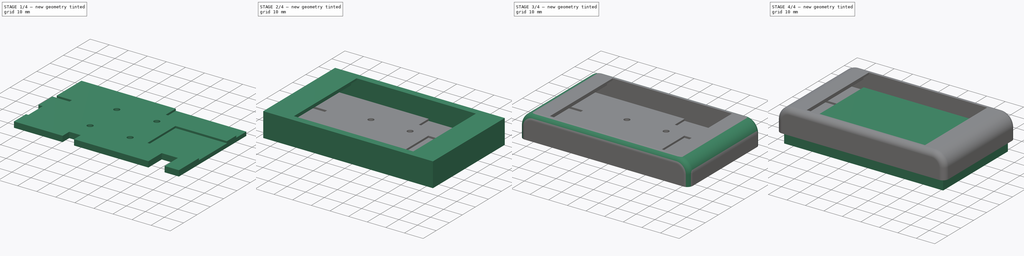
[diagram: build sequence overview — one tinted view per stage of 4, left to right]
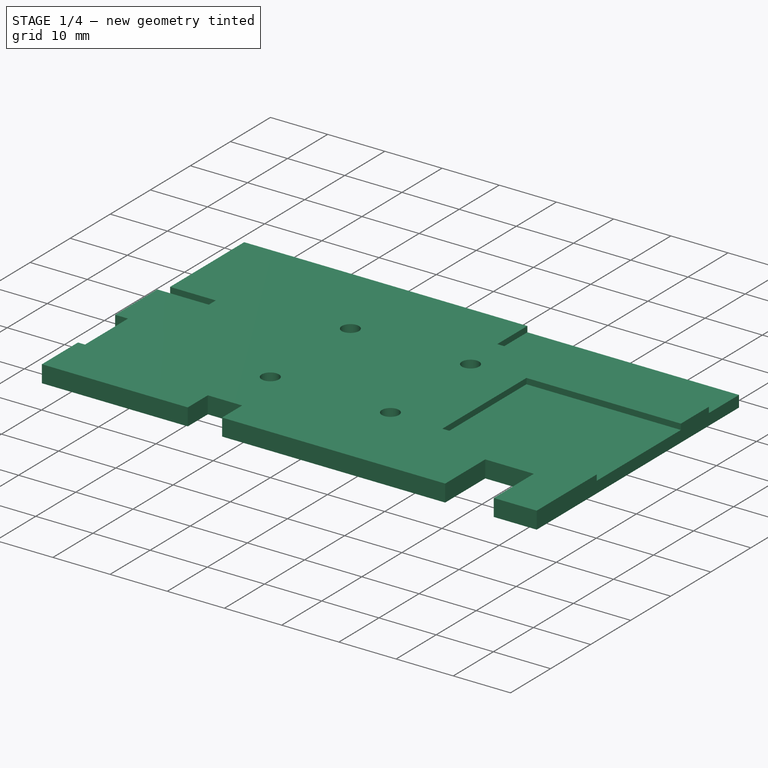
[diagram: stage 1 of 4 — iso view after this stage's code; geometry added in this stage tinted green]
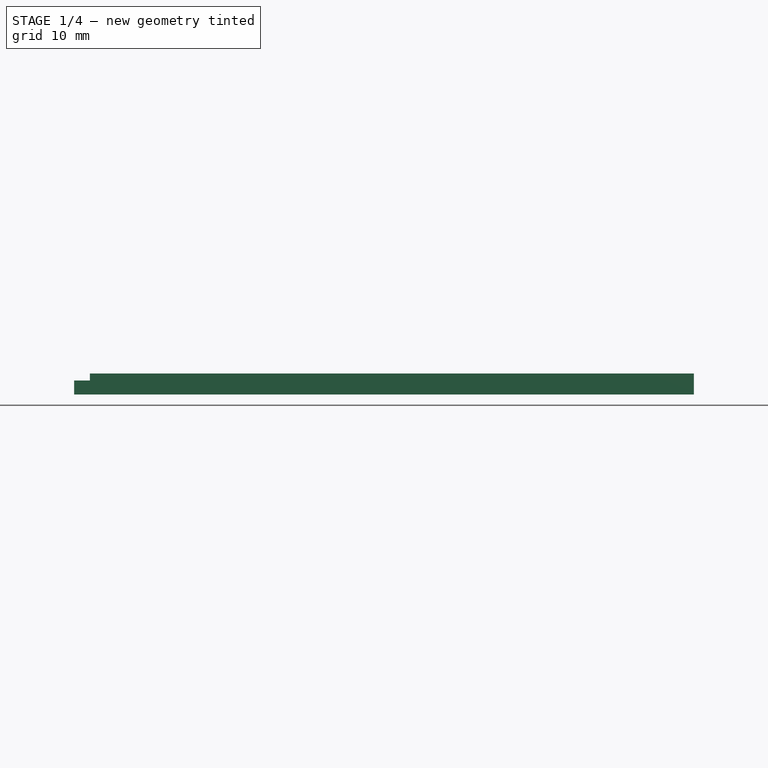
[diagram: stage 1 of 4 — front view after this stage's code; geometry added in this stage tinted green]
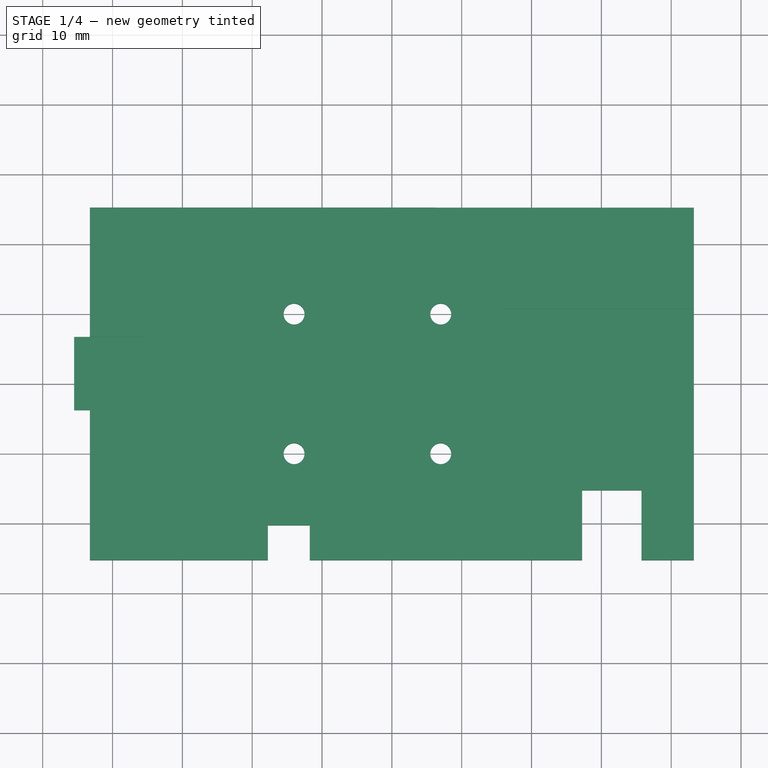
[diagram: stage 1 of 4 — top view after this stage's code; geometry added in this stage tinted green]
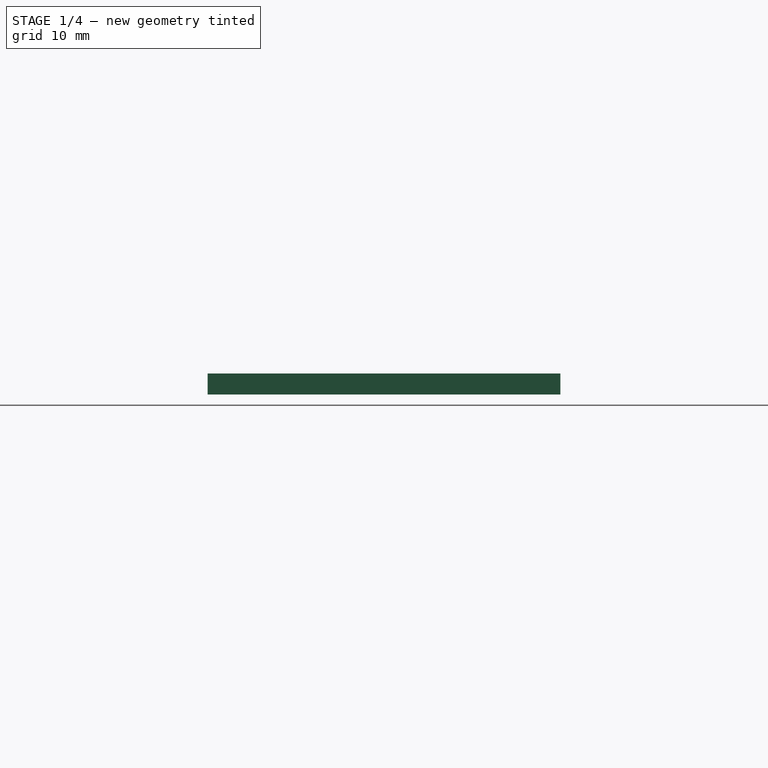
[diagram: stage 1 of 4 — right view after this stage's code; geometry added in this stage tinted green]
FCSTD DOCUMENT  (FreeCAD 1.0R39319 (Git))
Label: screenframe
License: All rights reserved
LicenseURL: https://en.wikipedia.org/wiki/All_rights_reserved
objects: Sketcher::SketchObject×9, PartDesign::Pad×7, PartDesign::Body×3, PartDesign::Fillet×2, PartDesign::Pocket×2, PartDesign::SubtractiveBox×1
note: 57 computed .brp shape members not serialized (recipe doc carries the construction recipe); baked Part::Feature solids carry a one-line shape summary decoded from their .brp

FEATURE [PartDesign::Body] Body001  label="cover frame"
  AllowCompound = false
  Group = -> [Sketch002,Pad002,Sketch003,Pad003,Pad004,Sketch004,Fillet,Fillet001,Box,Sketch005,Pocket]
  Origin = -> Origin001
  Placement = pos=(0,0,-7) rot=(0,0,1;0rad)
  Tip = -> Pocket
FEATURE [Sketcher::SketchObject] Sketch006
  ArcFitTolerance = 1e-06
  AttachmentSupport = -> [XY_Plane002]
  FullyConstrained = true
  MakeInternals = false
  MapMode = 5
  sketch-geometry (16):
    g0: LineSegment StartX=-43.25 StartY=-3.75 StartZ=0 EndX=-43.25 EndY=-25.25 EndZ=0
    g1: LineSegment StartX=43.25 StartY=-25.25 StartZ=0 EndX=43.25 EndY=25.25 EndZ=0
    g2: LineSegment StartX=-43.25 StartY=-3.75 StartZ=0 EndX=-45.5 EndY=-3.75 EndZ=0
    g3: LineSegment StartX=-45.5 StartY=-3.75 StartZ=0 EndX=-45.5 EndY=6.75 EndZ=0
    g4: LineSegment StartX=-45.5 StartY=6.75 StartZ=0 EndX=-43.25 EndY=6.75 EndZ=0
    g5: LineSegment StartX=-43.25 StartY=6.75 StartZ=0 EndX=-43.25 EndY=25.25 EndZ=0
    g6: LineSegment StartX=43.25 StartY=-25.25 StartZ=0 EndX=35.75 EndY=-25.25 EndZ=0
    g7: LineSegment StartX=35.75 StartY=-25.25 StartZ=0 EndX=35.75 EndY=-15.25 EndZ=0
    g8: LineSegment StartX=35.75 StartY=-15.25 StartZ=0 EndX=27.25 EndY=-15.25 EndZ=0
    g9: LineSegment StartX=27.25 StartY=-15.25 StartZ=0 EndX=27.25 EndY=-25.25 EndZ=0
    g10: LineSegment StartX=-43.25 StartY=-25.25 StartZ=0 EndX=-17.75 EndY=-25.25 EndZ=0
    g11: LineSegment StartX=-17.75 StartY=-25.25 StartZ=0 EndX=-17.75 EndY=-20.25 EndZ=0
    g12: LineSegment StartX=-17.75 StartY=-20.25 StartZ=0 EndX=-11.75 EndY=-20.25 EndZ=0
    g13: LineSegment StartX=-11.75 StartY=-20.25 StartZ=0 EndX=-11.75 EndY=-25.25 EndZ=0
    g14: LineSegment StartX=-11.75 StartY=-25.25 StartZ=0 EndX=27.25 EndY=-25.25 EndZ=0
    g15: LineSegment StartX=-43.25 StartY=25.25 StartZ=0 EndX=43.25 EndY=25.25 EndZ=0
  constraints (48):
    c: Vertical(g0)
    c: Vertical(g1)
    c: DistanceY(g1,g1) = 50.5
    c: Distance(g1,g-1) = 25.25
    c: DistanceY(g0,g0) = 21.5
    c: Distance(g2) = 2.25
    c: Coincident(g2,g0)
    c: Horizontal(g2)
    c: Distance(g3) = 10.5
    c: Coincident(g3,g2)
    c: Vertical(g3)
    c: Distance(g4) = 2.25
    c: Coincident(g4,g3)
    c: Horizontal(g4)
    c: Distance(g5) = 18.5
    c: Coincident(g5,g4)
    c: Vertical(g5)
    c: Distance(g6) = 7.5
    c: Horizontal(g6)
    c: Coincident(g6,g1)
    c: Distance(g7) = 10
    c: Coincident(g7,g6)
    c: Vertical(g7)
    c: Distance(g8) = 8.5
    c: Coincident(g8,g7)
    c: Horizontal(g8)
    c: Coincident(g9,g8)
    c: Vertical(g9)
    c: Equal(g7,g9)
    c: Distance(g10) = 25.5
    c: Horizontal(g10)
    c: Coincident(g10,g0)
    c: Distance(g11) = 5
    c: Vertical(g11)
    c: Coincident(g11,g10)
    c: Distance(g12,g12) = 6
    c: Coincident(g13,g12)
    c: Vertical(g13)
    c: Equal(g11,g13)
    c: Parallel(g12,g-1)
    c: Coincident(g14,g13)
    c: Coincident(g14,g9)
    c: Horizontal(g14)
    c: Coincident(g11,g12)
    c: Coincident(g15,g5)
    c: Coincident(g15,g1)
    c: DistanceX(g15,g15) = 86.5
    c: Distance(g1,g-2) = 43.25
FEATURE [PartDesign::Pad] Pad005
  Direction = (0,0,1)
  Length = 2
  Length2 = 10
  Profile = -> Sketch006
  ReferenceAxis = -> Sketch006 [N_Axis]
  Refine = true
  Suppressed = false
  Type = 0
FEATURE [Sketcher::SketchObject] Sketch007
  ArcFitTolerance = 1e-06
  AttachmentSupport = -> [Pad005]
  FullyConstrained = true
  MakeInternals = false
  MapMode = 5
  Placement = pos=(0,0,2) rot=(0,0,1;0rad)
  sketch-geometry (22):
    g0: LineSegment StartX=43.25 StartY=-25.25 StartZ=0 EndX=43.25 EndY=-10.25 EndZ=0
    g1: LineSegment StartX=43.25 StartY=-25.25 StartZ=0 EndX=35.75 EndY=-25.25 EndZ=0
    g2: LineSegment StartX=35.75 StartY=-25.25 StartZ=0 EndX=35.75 EndY=-15.25 EndZ=0
    g3: LineSegment StartX=35.75 StartY=-15.25 StartZ=0 EndX=27.25 EndY=-15.25 EndZ=0
    g4: LineSegment StartX=27.25 StartY=-15.25 StartZ=0 EndX=27.25 EndY=-25.25 EndZ=0
    g5: LineSegment StartX=43.25 StartY=-10.25 StartZ=0 EndX=16.25 EndY=-10.25 EndZ=0
    g6: LineSegment StartX=16.25 StartY=-10.25 StartZ=0 EndX=16.25 EndY=10.75 EndZ=0
    g7: LineSegment StartX=16.25 StartY=10.75 StartZ=0 EndX=43.25 EndY=10.75 EndZ=0
    g8: LineSegment StartX=43.25 StartY=10.75 StartZ=0 EndX=43.25 EndY=17.75 EndZ=0
    g9: LineSegment StartX=43.25 StartY=17.75 StartZ=0 EndX=6.25 EndY=17.75 EndZ=0
    g10: LineSegment StartX=6.25 StartY=17.75 StartZ=0 EndX=6.25 EndY=25.25 EndZ=0
    g11: LineSegment StartX=6.25 StartY=25.25 StartZ=0 EndX=-43.25 EndY=25.25 EndZ=0
    g12: LineSegment StartX=-43.25 StartY=25.25 StartZ=0 EndX=-43.25 EndY=6.75 EndZ=0
    g13: LineSegment StartX=-43.25 StartY=6.75 StartZ=0 EndX=-35.25 EndY=6.75 EndZ=0
    g14: LineSegment StartX=-35.25 StartY=6.75 StartZ=0 EndX=-35.25 EndY=-16.25 EndZ=0
    g15: LineSegment StartX=-35.25 StartY=-16.25 StartZ=0 EndX=-43.25 EndY=-16.25 EndZ=0
    g16: LineSegment StartX=-43.25 StartY=-16.25 StartZ=0 EndX=-43.25 EndY=-25.25 EndZ=0
    g17: LineSegment StartX=-43.25 StartY=-25.25 StartZ=0 EndX=-17.75 EndY=-25.25 EndZ=0
    g18: LineSegment StartX=-17.75 StartY=-25.25 StartZ=0 EndX=-17.75 EndY=-20.25 EndZ=0
    g19: LineSegment StartX=-17.75 StartY=-20.25 StartZ=0 EndX=-11.75 EndY=-20.25 EndZ=0
    g20: LineSegment StartX=-11.75 StartY=-20.25 StartZ=0 EndX=-11.75 EndY=-25.25 EndZ=0
    g21: LineSegment StartX=-11.75 StartY=-25.25 StartZ=0 EndX=27.25 EndY=-25.25 EndZ=0
  constraints (66):
    c: Distance(g0) = 15
    c: Vertical(g0)
    c: Coincident(g4,g3)
    c: Vertical(g4)
    c: DistanceY(g2,g2) = 10
    c: Equal(g4,g2)
    c: Parallel(g3,g-1)
    c: DistanceX(g3,g3) = 8.5
    c: DistanceX(g1,g1) = 7.5
    c: Parallel(g1,g-1)
    c: Distance(g0,g-2) = 43.25
    c: Distance(g0,g-1) = 25.25
    c: Coincident(g0,g1)
    c: Coincident(g1,g2)
    c: Coincident(g3,g2)
    c: Parallel(g2,g-2)
    c: Distance(g5) = 27
    c: Coincident(g5,g0)
    c: Horizontal(g5)
    c: Distance(g6) = 21
    c: Coincident(g6,g5)
    c: Vertical(g6)
    c: Coincident(g7,g6)
    c: Horizontal(g7)
    c: Equal(g5,g7)
    c: Distance(g8) = 7
    c: Coincident(g8,g7)
    c: Vertical(g8)
    c: Distance(g9) = 37
    c: Coincident(g9,g8)
    c: Horizontal(g9)
    c: Distance(g10) = 7.5
    c: Coincident(g10,g9)
    c: Vertical(g10)
    c: Distance(g11) = 49.5
    c: Coincident(g11,g10)
    c: Horizontal(g11)
    c: Distance(g12) = 18.5
    c: Coincident(g12,g11)
    c: Vertical(g12)
    c: Distance(g13) = 8
    c: Coincident(g13,g12)
    c: Horizontal(g13)
    c: Distance(g14) = 23
    c: Coincident(g14,g13)
    c: Vertical(g14)
    c: Coincident(g15,g14)
    c: Horizontal(g15)
    c: Equal(g13,g15)
    c: Distance(g16) = 9
    c: Coincident(g16,g15)
    c: Vertical(g16)
    c: Distance(g17) = 25.5
    c: Coincident(g17,g16)
    c: Horizontal(g17)
    c: Distance(g18) = 5
    c: Coincident(g18,g17)
    c: Vertical(g18)
    c: Distance(g19) = 6
    c: Coincident(g19,g18)
    c: Horizontal(g19)
    c: Coincident(g20,g19)
    c: Vertical(g20)
    c: Equal(g18,g20)
    c: Coincident(g21,g20)
    c: Coincident(g21,g4)
FEATURE [PartDesign::Pad] Pad006
  BaseFeature = -> Pad005
  Direction = (0,0,1)
  Length = 1
  Length2 = 10
  Profile = -> Sketch007
  ReferenceAxis = -> Sketch007 [N_Axis]
  Refine = true
  Suppressed = false
  Type = 0
FEATURE [Sketcher::SketchObject] Sketch008
  ArcFitTolerance = 1e-06
  AttachmentSupport = -> [Pad006]
  FullyConstrained = true
  MakeInternals = false
  MapMode = 5
  Placement = pos=(0,0,0) rot=(1,0,0;3.14159rad)
  sketch-geometry (4):
    g0: Circle CenterX=-14 CenterY=10 CenterZ=0 NormalX=0 NormalY=0 NormalZ=1 AngleXU=0 Radius=1.5
    g1: Circle CenterX=7 CenterY=10 CenterZ=0 NormalX=0 NormalY=0 NormalZ=1 AngleXU=0 Radius=1.5
    g2: Circle CenterX=-14 CenterY=-10 CenterZ=0 NormalX=0 NormalY=0 NormalZ=1 AngleXU=0 Radius=1.5
    g3: Circle CenterX=7 CenterY=-10 CenterZ=0 NormalX=0 NormalY=0 NormalZ=1 AngleXU=0 Radius=1.5
  constraints (12):
    c: Diameter(g0) = 3
    c: Diameter(g1) = 3
    c: Diameter(g2) = 3
    c: Diameter(g3) = 3
    c: Distance(g1,g-2) = 7
    c: Distance(g3,g-2) = 7
    c: Distance(g0,g-2) = 14
    c: Distance(g2,g-2) = 14
    c: Distance(g3,g-1) = 10
    c: Distance(g2,g-1) = 10
    c: Distance(g1,g-1) = 10
    c: Distance(g0,g-1) = 10
FEATURE [PartDesign::Pocket] Pocket001
  BaseFeature = -> Pad006
  Direction = (0,0,1)
  Length = 5
  Length2 = 5
  Profile = -> Sketch008
  ReferenceAxis = -> Sketch008 [N_Axis]
  Refine = true
  Suppressed = false
  Type = 0
FEATURE [PartDesign::Body] Body002  label="base frame"
  AllowCompound = false
  Group = -> [Sketch006,Pad005,Sketch007,Pad006,Sketch008,Pocket001]
  Origin = -> Origin002
  Tip = -> Pocket001
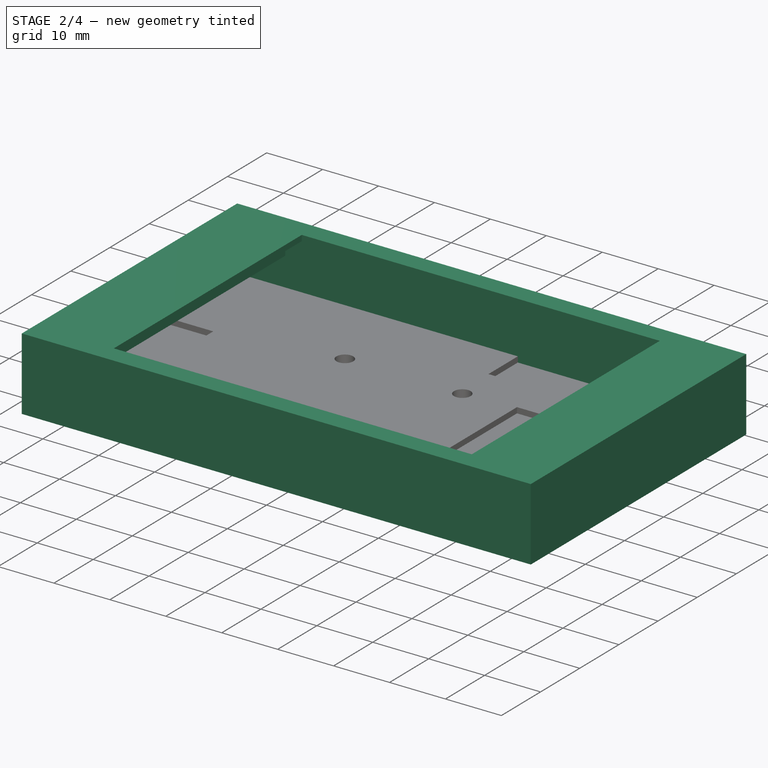
[diagram: stage 2 of 4 — iso view after this stage's code; geometry added in this stage tinted green]
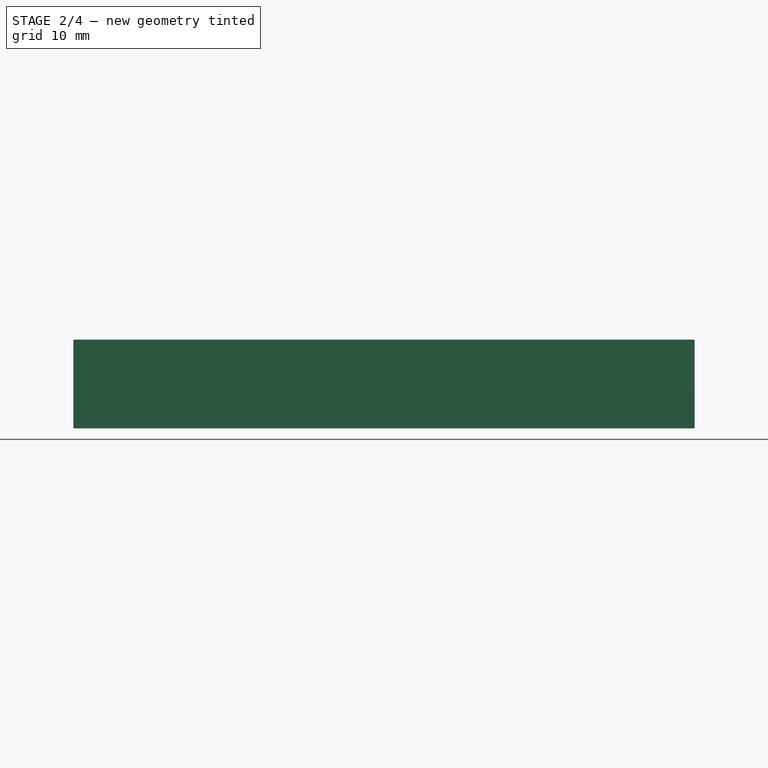
[diagram: stage 2 of 4 — front view after this stage's code; geometry added in this stage tinted green]
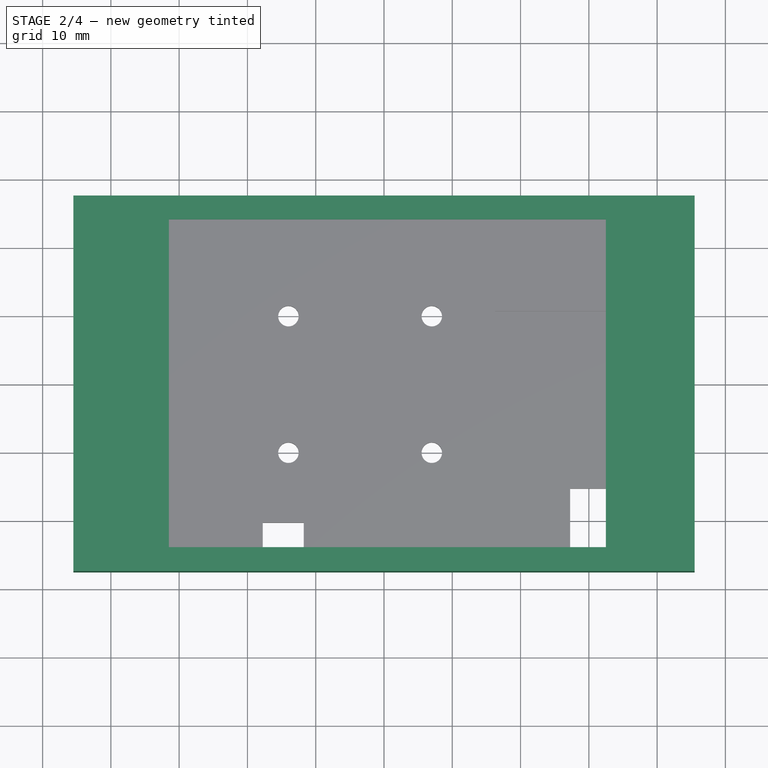
[diagram: stage 2 of 4 — top view after this stage's code; geometry added in this stage tinted green]
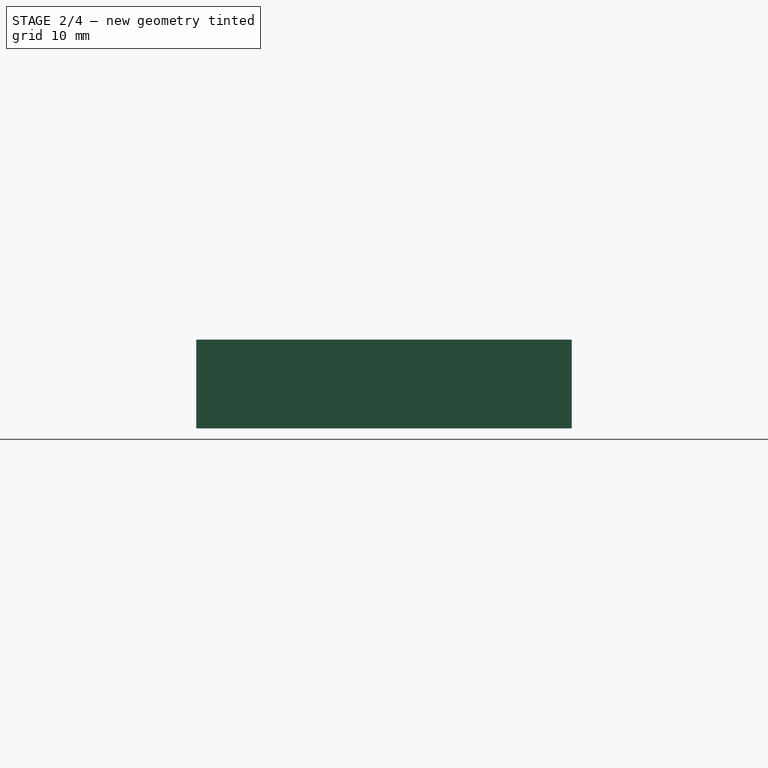
[diagram: stage 2 of 4 — right view after this stage's code; geometry added in this stage tinted green]
FEATURE [PartDesign::Body] Body  label="display"
  AllowCompound = false
  Group = -> [Sketch,Pad,Sketch001,Pad001]
  Origin = -> Origin
  Tip = -> Pad001
FEATURE [Sketcher::SketchObject] Sketch002
  ArcFitTolerance = 1e-06
  AttachmentSupport = -> [XY_Plane001]
  FullyConstrained = true
  MakeInternals = false
  MapMode = 5
  sketch-geometry (8):
    g0: LineSegment StartX=-43.5 StartY=25.5 StartZ=0 EndX=-43.5 EndY=-25.5 EndZ=0
    g1: LineSegment StartX=-43.5 StartY=-25.5 StartZ=0 EndX=43.5 EndY=-25.5 EndZ=0
    g2: LineSegment StartX=43.5 StartY=-25.5 StartZ=0 EndX=43.5 EndY=25.5 EndZ=0
    g3: LineSegment StartX=43.5 StartY=25.5 StartZ=0 EndX=-43.5 EndY=25.5 EndZ=0
    g4: LineSegment StartX=-45.5 StartY=27.5 StartZ=0 EndX=-45.5 EndY=-27.5 EndZ=0
    g5: LineSegment StartX=-45.5 StartY=-27.5 StartZ=0 EndX=45.5 EndY=-27.5 EndZ=0
    g6: LineSegment StartX=45.5 StartY=-27.5 StartZ=0 EndX=45.5 EndY=27.5 EndZ=0
    g7: LineSegment StartX=45.5 StartY=27.5 StartZ=0 EndX=-45.5 EndY=27.5 EndZ=0
  constraints (24):
    c: Coincident(g0,g1)
    c: Coincident(g1,g2)
    c: Coincident(g2,g3)
    c: Coincident(g3,g0)
    c: Vertical(g0)
    c: Vertical(g2)
    c: Horizontal(g1)
    c: Horizontal(g3)
    c: Distance(g0,g2) = 87
    c: Distance(g1,g3) = 51
    c: Distance(g0,g-2) = 43.5
    c: Distance(g0,g-1) = 25.5
    c: Coincident(g4,g5)
    c: Coincident(g5,g6)
    c: Coincident(g6,g7)
    c: Coincident(g7,g4)
    c: Vertical(g4)
    c: Vertical(g6)
    c: Horizontal(g5)
    c: Horizontal(g7)
    c: Distance(g4,g6) = 91
    c: Distance(g5,g7) = 55
    c: Distance(g4,g-2) = 45.5
    c: Distance(g4,g-1) = 27.5
FEATURE [PartDesign::Pad] Pad002
  Direction = (0,0,1)
  Length = 8
  Length2 = 10
  Profile = -> Sketch002
  ReferenceAxis = -> Sketch002 [N_Axis]
  Refine = true
  Suppressed = false
  Type = 0
FEATURE [Sketcher::SketchObject] Sketch003
  ArcFitTolerance = 1e-06
  AttachmentSupport = -> [Pad002]
  FullyConstrained = true
  MakeInternals = false
  MapMode = 5
  Placement = pos=(0,0,8) rot=(0,0,1;0rad)
  sketch-geometry (8):
    g0: LineSegment StartX=-35.5 StartY=25.5 StartZ=0 EndX=-35.5 EndY=-25.5 EndZ=0
    g1: LineSegment StartX=-35.5 StartY=-25.5 StartZ=0 EndX=35.5 EndY=-25.5 EndZ=0
    g2: LineSegment StartX=35.5 StartY=-25.5 StartZ=0 EndX=35.5 EndY=25.5 EndZ=0
    g3: LineSegment StartX=35.5 StartY=25.5 StartZ=0 EndX=-35.5 EndY=25.5 EndZ=0
    g4: LineSegment StartX=-45.5 StartY=27.5 StartZ=0 EndX=-45.5 EndY=-27.5 EndZ=0
    g5: LineSegment StartX=-45.5 StartY=-27.5 StartZ=0 EndX=45.5 EndY=-27.5 EndZ=0
    g6: LineSegment StartX=45.5 StartY=-27.5 StartZ=0 EndX=45.5 EndY=27.5 EndZ=0
    g7: LineSegment StartX=45.5 StartY=27.5 StartZ=0 EndX=-45.5 EndY=27.5 EndZ=0
  constraints (24):
    c: Coincident(g0,g1)
    c: Coincident(g1,g2)
    c: Coincident(g2,g3)
    c: Coincident(g3,g0)
    c: Vertical(g0)
    c: Vertical(g2)
    c: Horizontal(g1)
    c: Horizontal(g3)
    c: Distance(g0,g2) = 71
    c: Distance(g1,g3) = 51
    c: Coincident(g4,g5)
    c: Coincident(g5,g6)
    c: Coincident(g6,g7)
    c: Coincident(g7,g4)
    c: Vertical(g4)
    c: Vertical(g6)
    c: Horizontal(g5)
    c: Horizontal(g7)
    c: Distance(g4,g6) = 91
    c: Distance(g5,g7) = 55
    c: Distance(g0,g-2) = 35.5
    c: Distance(g4,g-2) = 45.5
    c: Distance(g0,g-1) = 25.5
    c: Distance(g4,g-1) = 27.5
FEATURE [PartDesign::Pad] Pad003
  BaseFeature = -> Pad002
  Direction = (0,0,1)
  Length = 4
  Length2 = 10
  Profile = -> Sketch003
  ReferenceAxis = -> Sketch003 [N_Axis]
  Refine = true
  Suppressed = false
  Type = 0
FEATURE [Sketcher::SketchObject] Sketch004
  ArcFitTolerance = 1e-06
  AttachmentSupport = -> [Pad003]
  FullyConstrained = true
  MakeInternals = false
  MapMode = 5
  Placement = pos=(0,0,12) rot=(0,0,1;0rad)
  sketch-geometry (8):
    g0: LineSegment StartX=-31.5 StartY=24 StartZ=0 EndX=-31.5 EndY=-24 EndZ=0
    g1: LineSegment StartX=-31.5 StartY=-24 StartZ=0 EndX=32.5 EndY=-24 EndZ=0
    g2: LineSegment StartX=32.5 StartY=-24 StartZ=0 EndX=32.5 EndY=24 EndZ=0
    g3: LineSegment StartX=32.5 StartY=24 StartZ=0 EndX=-31.5 EndY=24 EndZ=0
    g4: LineSegment StartX=-45.5 StartY=27.5 StartZ=0 EndX=-45.5 EndY=-27.5 EndZ=0
    g5: LineSegment StartX=-45.5 StartY=-27.5 StartZ=0 EndX=45.5 EndY=-27.5 EndZ=0
    g6: LineSegment StartX=45.5 StartY=-27.5 StartZ=0 EndX=45.5 EndY=27.5 EndZ=0
    g7: LineSegment StartX=45.5 StartY=27.5 StartZ=0 EndX=-45.5 EndY=27.5 EndZ=0
  constraints (24):
    c: Coincident(g0,g1)
    c: Coincident(g1,g2)
    c: Coincident(g2,g3)
    c: Coincident(g3,g0)
    c: Vertical(g0)
    c: Vertical(g2)
    c: Horizontal(g1)
    c: Horizontal(g3)
    c: Coincident(g4,g5)
    c: Coincident(g5,g6)
    c: Coincident(g6,g7)
    c: Coincident(g7,g4)
    c: Vertical(g4)
    c: Vertical(g6)
    c: Horizontal(g5)
    c: Horizontal(g7)
    c: DistanceX(g7,g7) = 91
    c: DistanceY(g4,g4) = 55
    c: Distance(g4,g-2) = 45.5
    c: Distance(g4,g-1) = 27.5
    c: DistanceX(g1,g1) = 64
    c: DistanceY(g2,g2) = 48
    c: Distance(g0,g-2) = 31.5
    c: Distance(g2,g-1) = 24
FEATURE [PartDesign::Pad] Pad004
  BaseFeature = -> Pad003
  Direction = (0,0,1)
  Length = 1
  Length2 = 10
  Profile = -> Sketch004
  ReferenceAxis = -> Sketch004 [N_Axis]
  Refine = true
  Suppressed = false
  Type = 0
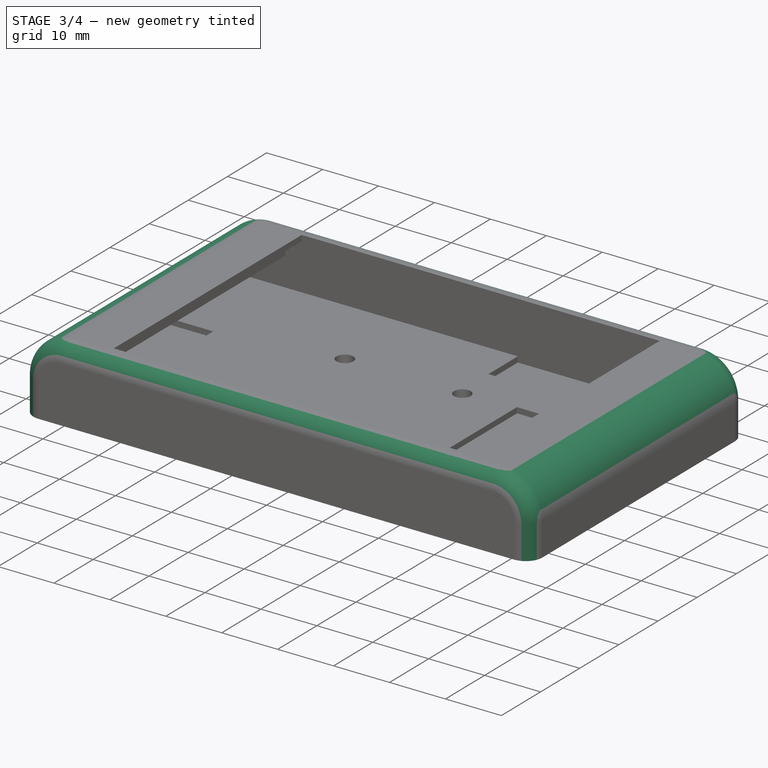
[diagram: stage 3 of 4 — iso view after this stage's code; geometry added in this stage tinted green]
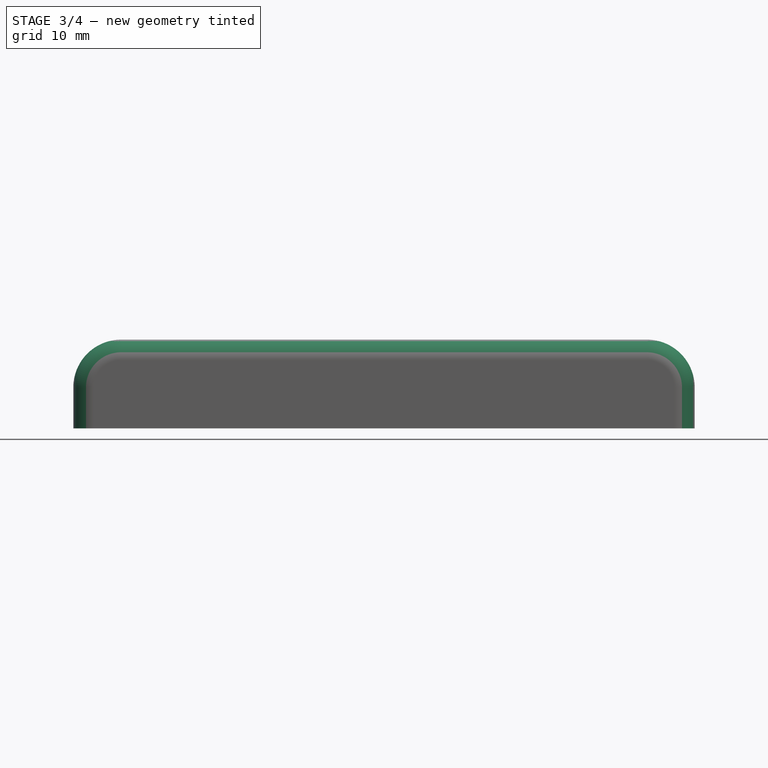
[diagram: stage 3 of 4 — front view after this stage's code; geometry added in this stage tinted green]
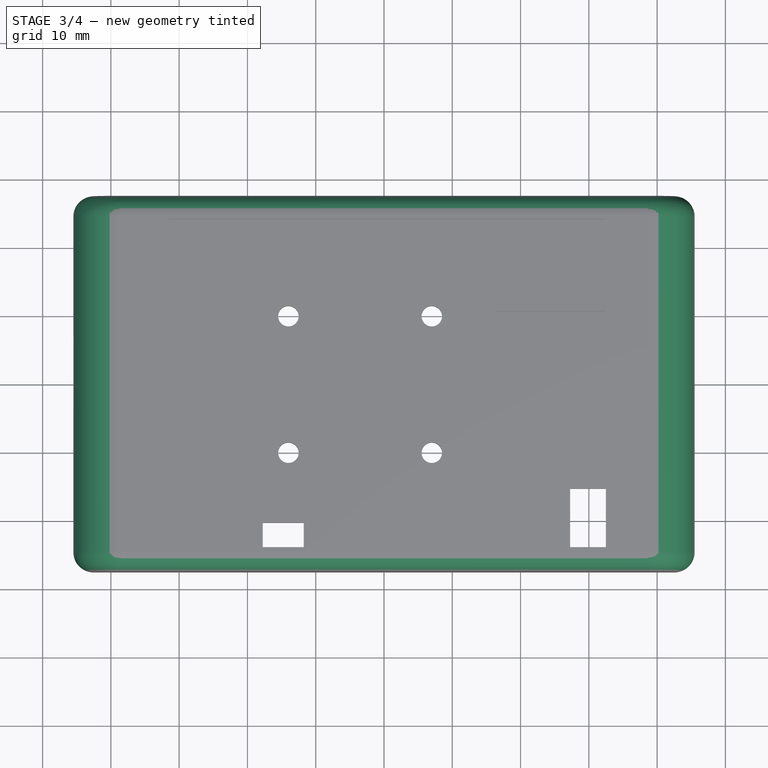
[diagram: stage 3 of 4 — top view after this stage's code; geometry added in this stage tinted green]
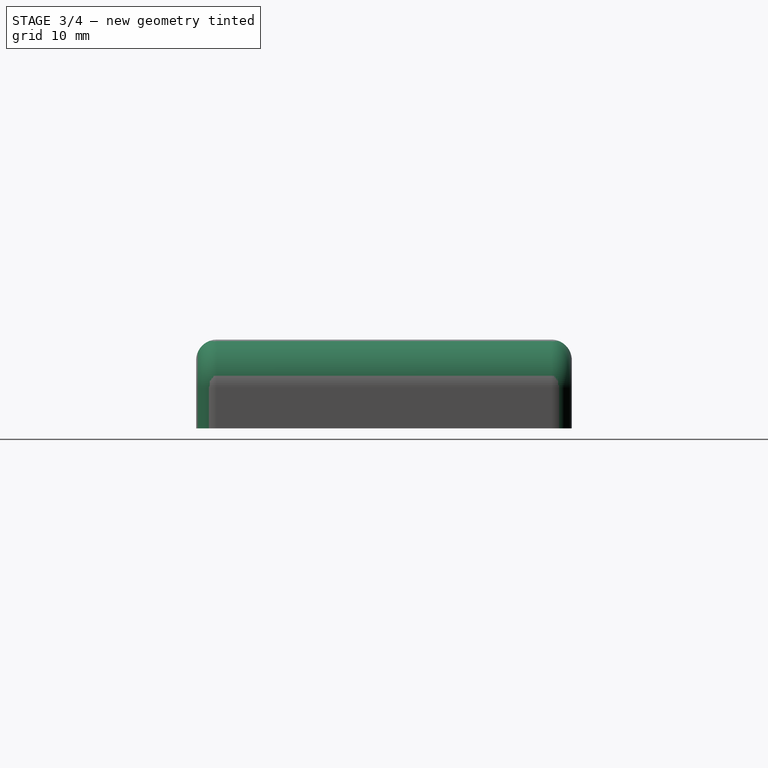
[diagram: stage 3 of 4 — right view after this stage's code; geometry added in this stage tinted green]
FEATURE [PartDesign::Fillet] Fillet
  Base = -> Pad004 [Edge36,Edge38]
  BaseFeature = -> Pad004
  Radius = 7
  Refine = true
  SupportTransform = false
  Suppressed = false
  UseAllEdges = false
FEATURE [PartDesign::Fillet] Fillet001
  Base = -> Fillet [Edge10,Edge14]
  BaseFeature = -> Fillet
  Radius = 3
  Refine = true
  SupportTransform = false
  Suppressed = false
  UseAllEdges = false
FEATURE [PartDesign::SubtractiveBox] Box
  AttacherType = Attacher::AttachEngine3D
  AttachmentOffset = pos=(-4,0,-46) rot=(0,0,1;0rad)
  AttachmentSupport = -> [YZ_Plane001]
  BaseFeature = -> Fillet001
  Height = 7
  Length = 11
  MapMode = 5
  Placement = pos=(-46,-4,0) rot=(0.57735,0.57735,0.57735;2.0944rad)
  Refine = true
  Suppressed = false
  Width = 6.5
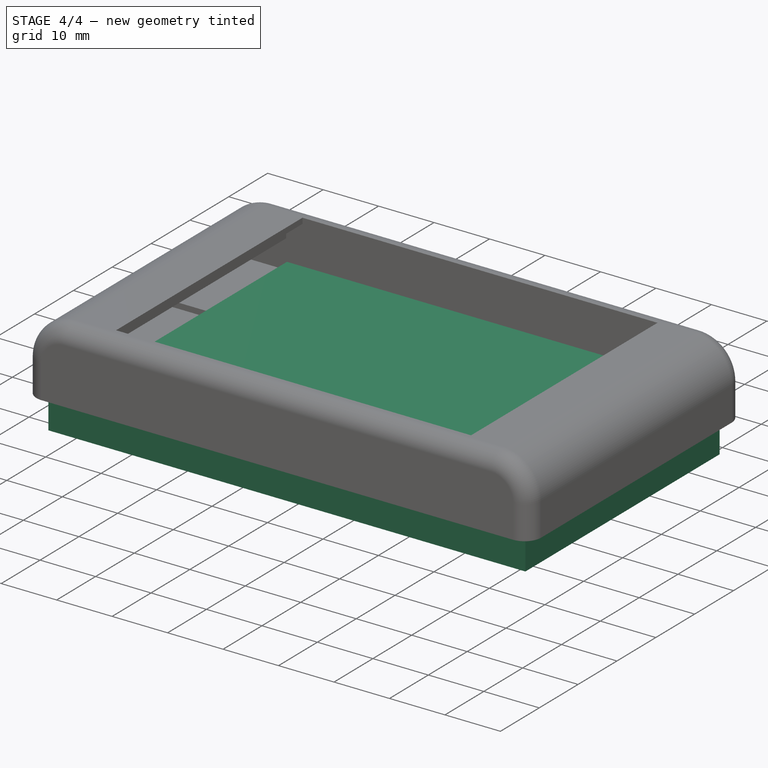
[diagram: stage 4 of 4 — iso view after this stage's code; geometry added in this stage tinted green]
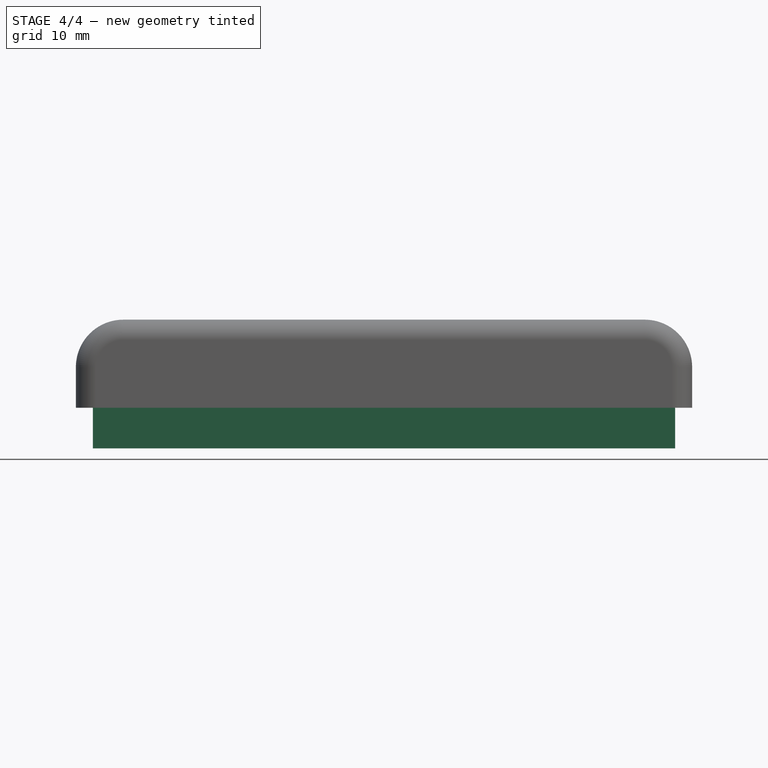
[diagram: stage 4 of 4 — front view after this stage's code; geometry added in this stage tinted green]
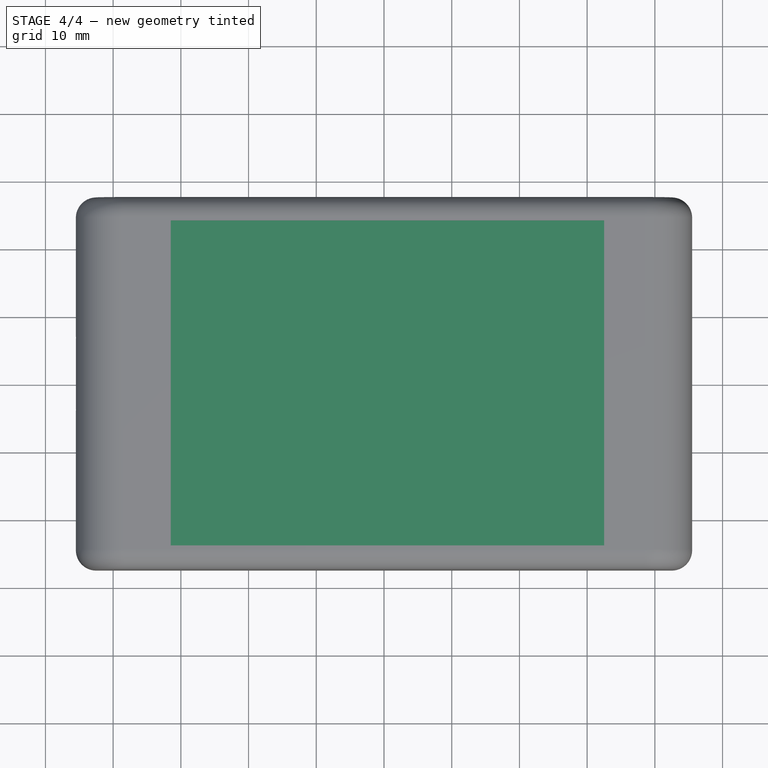
[diagram: stage 4 of 4 — top view after this stage's code; geometry added in this stage tinted green]
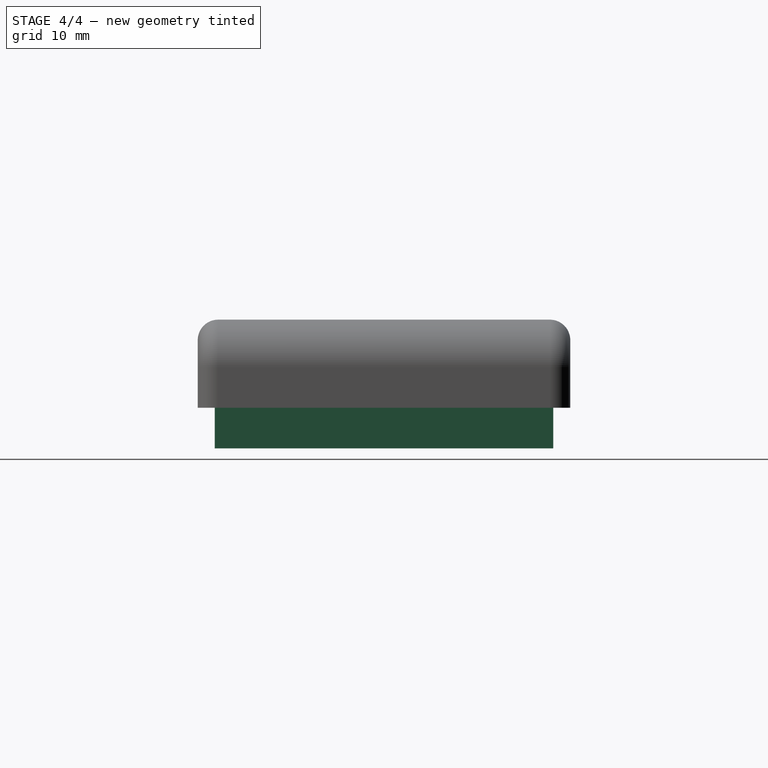
[diagram: stage 4 of 4 — right view after this stage's code; geometry added in this stage tinted green]
FEATURE [Sketcher::SketchObject] Sketch
  ArcFitTolerance = 1e-06
  AttachmentSupport = -> [XY_Plane]
  FullyConstrained = true
  MakeInternals = false
  MapMode = 5
  sketch-geometry (4):
    g0: LineSegment StartX=-35 StartY=25 StartZ=0 EndX=-35 EndY=-25 EndZ=0
    g1: LineSegment StartX=-35 StartY=-25 StartZ=0 EndX=35 EndY=-25 EndZ=0
    g2: LineSegment StartX=35 StartY=-25 StartZ=0 EndX=35 EndY=25 EndZ=0
    g3: LineSegment StartX=35 StartY=25 StartZ=0 EndX=-35 EndY=25 EndZ=0
  constraints (12):
    c: Coincident(g0,g1)
    c: Coincident(g1,g2)
    c: Coincident(g2,g3)
    c: Coincident(g3,g0)
    c: Vertical(g0)
    c: Vertical(g2)
    c: Horizontal(g1)
    c: Horizontal(g3)
    c: Distance(g0,g2) = 70
    c: Distance(g1,g3) = 50
    c: Distance(g2,g-2) = 35
    c: Distance(g0,g-1) = 25
FEATURE [PartDesign::Pad] Pad
  Direction = (0,0,1)
  Length = 4.5
  Length2 = 10
  Profile = -> Sketch
  ReferenceAxis = -> Sketch [N_Axis]
  Refine = true
  Suppressed = false
  Type = 0
FEATURE [Sketcher::SketchObject] Sketch001
  ArcFitTolerance = 1e-06
  AttachmentSupport = -> [Pad]
  FullyConstrained = true
  MakeInternals = false
  MapMode = 5
  Placement = pos=(0,0,0) rot=(1,0,0;3.14159rad)
  sketch-geometry (4):
    g0: LineSegment StartX=-43 StartY=25 StartZ=0 EndX=-43 EndY=-25 EndZ=0
    g1: LineSegment StartX=-43 StartY=-25 StartZ=0 EndX=43 EndY=-25 EndZ=0
    g2: LineSegment StartX=43 StartY=-25 StartZ=0 EndX=43 EndY=25 EndZ=0
    g3: LineSegment StartX=43 StartY=25 StartZ=0 EndX=-43 EndY=25 EndZ=0
  constraints (12):
    c: Coincident(g0,g1)
    c: Coincident(g1,g2)
    c: Coincident(g2,g3)
    c: Coincident(g3,g0)
    c: Vertical(g0)
    c: Vertical(g2)
    c: Horizontal(g1)
    c: Horizontal(g3)
    c: Distance(g0,g2) = 86
    c: Distance(g1,g3) = 50
    c: Distance(g2,g-2) = 43
    c: Distance(g0,g-1) = 25
FEATURE [PartDesign::Pad] Pad001
  BaseFeature = -> Pad
  Direction = (0,0,-1)
  Length = 6
  Length2 = 10
  Profile = -> Sketch001
  ReferenceAxis = -> Sketch001 [N_Axis]
  Refine = true
  Suppressed = false
  Type = 0
FEATURE [Sketcher::SketchObject] Sketch005
  ArcFitTolerance = 1e-06
  AttachmentSupport = -> [Box]
  FullyConstrained = true
  MakeInternals = false
  MapMode = 5
  Placement = pos=(-46,-4,8) rot=(0.707107,0.707107,0;3.14159rad)
  sketch-geometry (4):
    g0: LineSegment StartX=-21.5 StartY=88.5 StartZ=0 EndX=-21.5 EndY=81.5 EndZ=0
    g1: LineSegment StartX=-21.5 StartY=81.5 StartZ=0 EndX=29.5 EndY=81.5 EndZ=0
    g2: LineSegment StartX=29.5 StartY=81.5 StartZ=0 EndX=29.5 EndY=88.5 EndZ=0
    g3: LineSegment StartX=29.5 StartY=88.5 StartZ=0 EndX=-21.5 EndY=88.5 EndZ=0
  constraints (12):
    c: Coincident(g0,g1)
    c: Coincident(g1,g2)
    c: Coincident(g2,g3)
    c: Coincident(g3,g0)
    c: Vertical(g0)
    c: Vertical(g2)
    c: Horizontal(g1)
    c: Horizontal(g3)
    c: Distance(g0,g2) = 51
    c: Distance(g1,g3) = 7
    c: Distance(g0,g-2) = 21.5
    c: Distance(g1,g-1) = 81.5
FEATURE [PartDesign::Pocket] Pocket
  BaseFeature = -> Box
  Direction = (0,0,1)
  Length = 1
  Length2 = 5
  Placement = pos=(-46,-4,0) rot=(0.57735,0.57735,0.57735;2.0944rad)
  Profile = -> Sketch005
  ReferenceAxis = -> Sketch005 [N_Axis]
  Refine = true
  Suppressed = false
  Type = 0
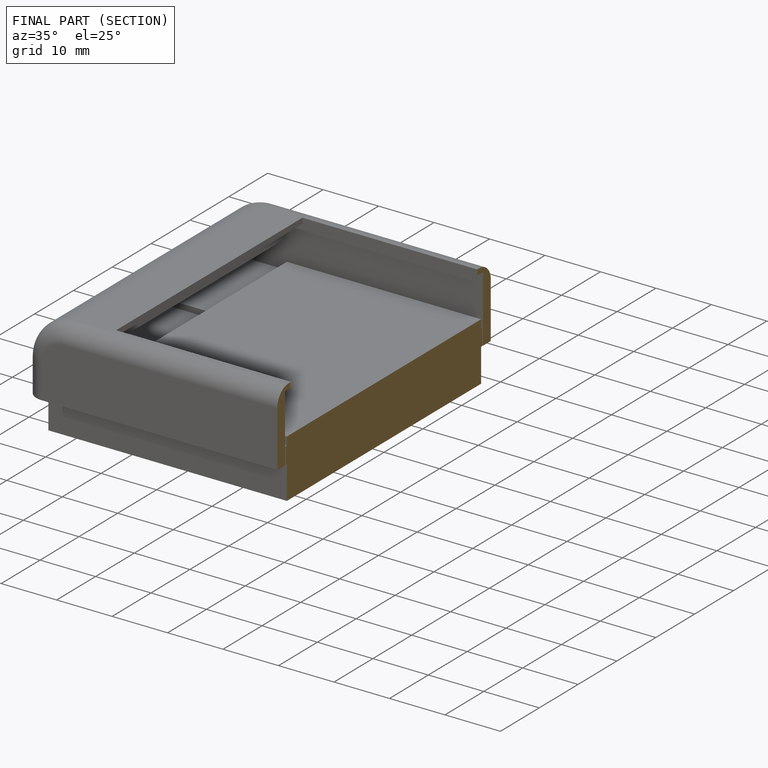
[diagram: finished part — half-section view (interior)]
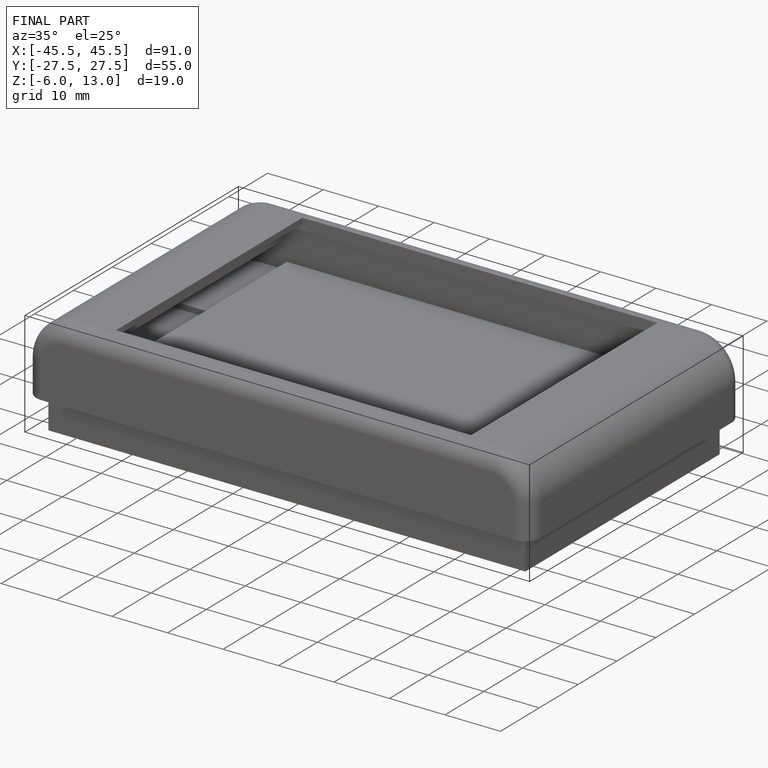
[diagram: finished part — iso view with bounding-box wireframe]
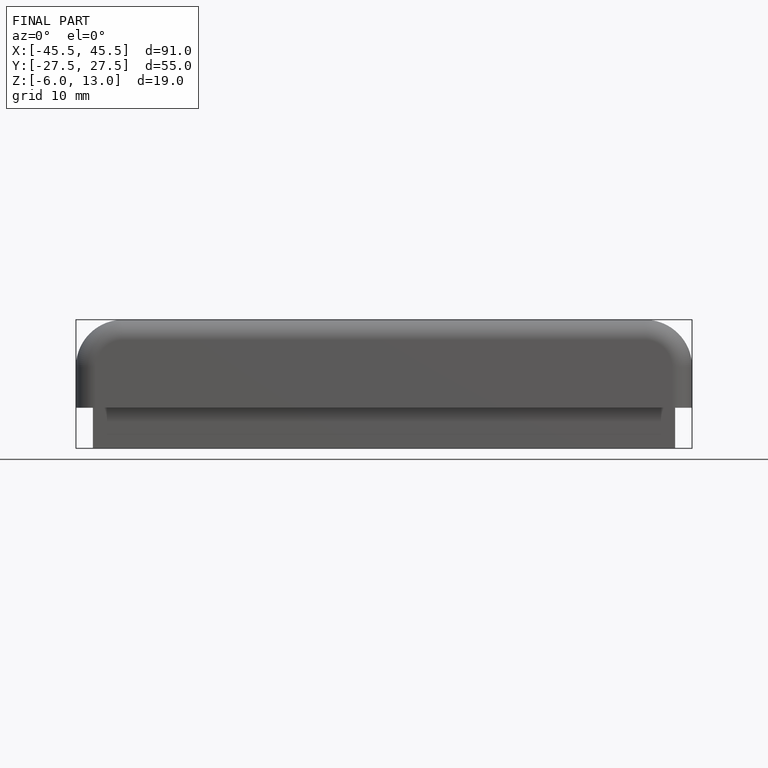
[diagram: finished part — front view with bounding-box wireframe]
